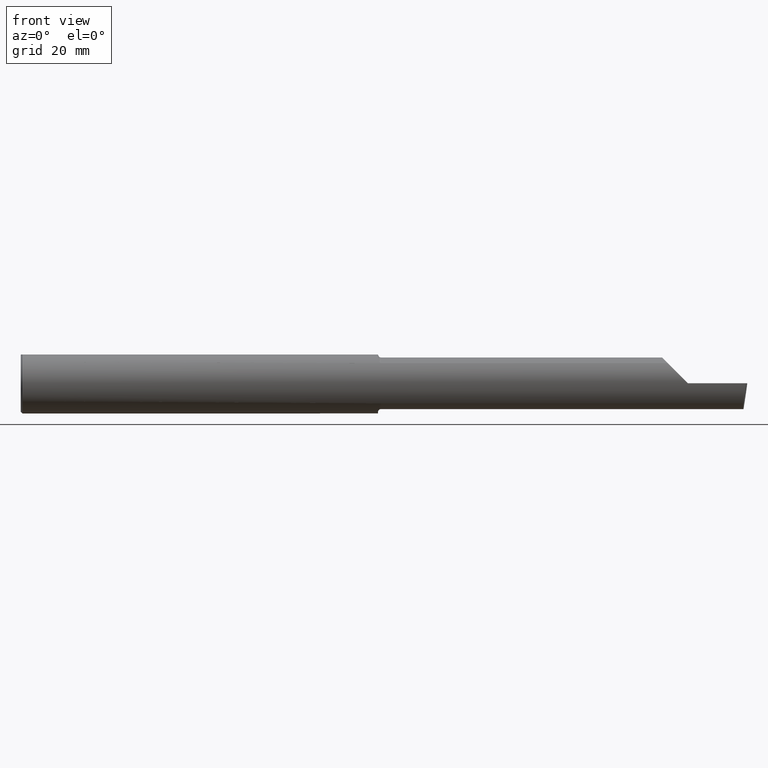
[diagram: clean part render]
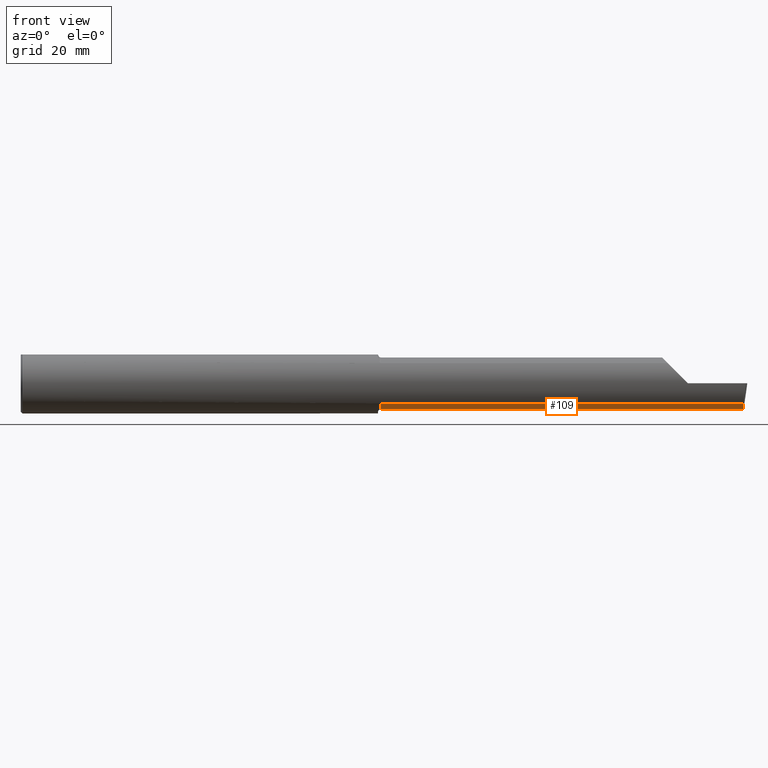
[diagram: same view with one face highlighted and labeled with its STEP entity id]
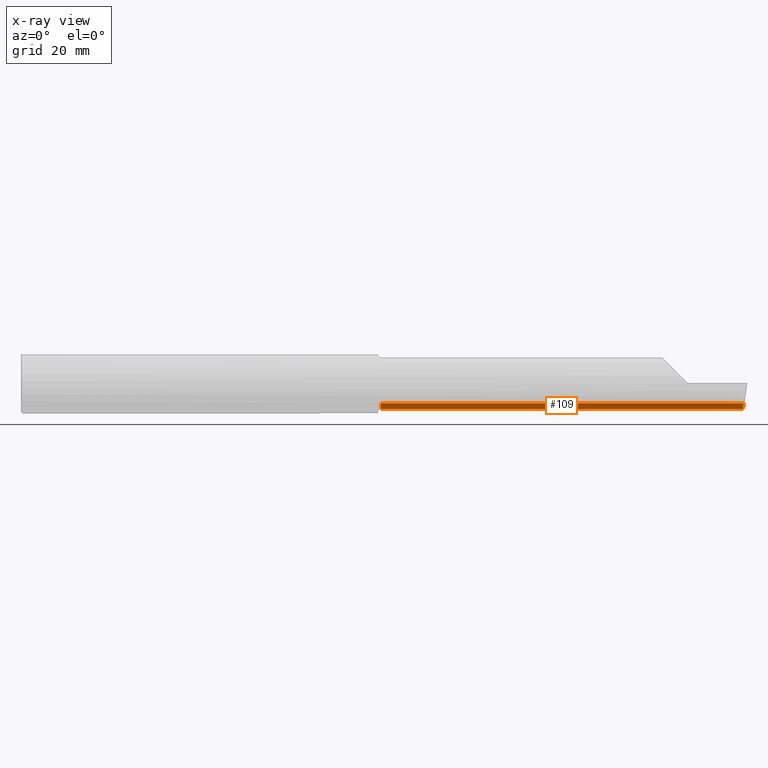
[diagram: x-ray of the same camera — body ghosted, the highlighted face saturated]
A machine part, front view. The second image highlights one B-rep face of the part: STEP entity #109.
The next image is the same camera in x-ray: the body ghosted, the highlighted face saturated — about 0% of this face is hidden behind the body in this view.
In plain terms, the highlighted cylindrical surface (edge-blend (fillet) strip) has radius 5.414 mm, axis along (-1, -0, -0).
Its self-contained STEP definition (entity closure, byte-faithful):
#14 = VERTEX_POINT ( 'NONE', #48 ) ;
#48 = CARTESIAN_POINT ( 'NONE',  ( 2.975000000000000533, -0.1868028301886801024, -0.1659208399614078011 ) ) ;
#57 = CYLINDRICAL_SURFACE ( 'NONE', #367, 0.2131499999999999506 ) ;
#76 = VERTEX_POINT ( 'NONE', #359 ) ;
#96 = CIRCLE ( 'NONE', #292, 0.2131499999999997008 ) ;
#109 = ADVANCED_FACE ( 'NONE', ( #740 ), #57, .T. ) ;
#115 = CARTESIAN_POINT ( 'NONE',  ( 5.968492717492763333, -0.1868028301886794917, -0.1659208399614086338 ) ) ;
#117 = CARTESIAN_POINT ( 'NONE',  ( 6.000000000000000888, -0.05299999999999998462, -0.2131499999999999229 ) ) ;
#152 = EDGE_LOOP ( 'NONE', ( #584, #675, #604, #438, #503 ) ) ;
#158 = CARTESIAN_POINT ( 'NONE',  ( 0.0000000000000000000, -0.05299999999999996381, -0.2131499999999999506 ) ) ;
#187 = CARTESIAN_POINT ( 'NONE',  ( 0.0000000000000000000, -0.05299999999999998462, 0.0000000000000000000 ) ) ;
#194 = EDGE_CURVE ( 'NONE', #76, #677, #617, .T. ) ;
#263 = DIRECTION ( 'NONE',  ( -1.000000000000000000, -0.0000000000000000000, -0.0000000000000000000 ) ) ;
#269 = VECTOR ( 'NONE', #729, 39.37007874015748143 ) ;
#292 = AXIS2_PLACEMENT_3D ( 'NONE', #348, #764, #408 ) ;
#306 = CARTESIAN_POINT ( 'NONE',  ( 5.966195468375009803, -0.05299999999999998462, -0.2131499999999999229 ) ) ;
#348 = CARTESIAN_POINT ( 'NONE',  ( 2.975000000000000533, -0.05299999999999998462, 0.0000000000000000000 ) ) ;
#359 = CARTESIAN_POINT ( 'NONE',  ( 5.966195468375009803, -0.05299999999999998462, -0.2131499999999999229 ) ) ;
#367 = AXIS2_PLACEMENT_3D ( 'NONE', #187, #487, #533 ) ;
#382 = CARTESIAN_POINT ( 'NONE',  ( 5.544999999999999929, -0.05299999999999998462, -0.2131499999999999229 ) ) ;
#391 = EDGE_CURVE ( 'NONE', #677, #727, #710, .T. ) ;
#408 = DIRECTION ( 'NONE',  ( 0.0000000000000000000, 0.0000000000000000000, 1.000000000000000000 ) ) ;
#421 = EDGE_CURVE ( 'NONE', #727, #14, #96, .T. ) ;
#438 = ORIENTED_EDGE ( 'NONE', *, *, #455, .T. ) ;
#455 = EDGE_CURVE ( 'NONE', #697, #14, #521, .T. ) ;
#459 = DIRECTION ( 'NONE',  ( -1.000000000000000000, 5.691349986800549142E-18, -0.0000000000000000000 ) ) ;
#482 = CARTESIAN_POINT ( 'NONE',  ( 5.968492717492763333, -0.1868028301886794917, -0.1659208399614086338 ) ) ;
#487 = DIRECTION ( 'NONE',  ( -1.000000000000000000, -0.0000000000000000000, -0.0000000000000000000 ) ) ;
#503 = ORIENTED_EDGE ( 'NONE', *, *, #421, .F. ) ;
#521 = LINE ( 'NONE', #548, #540 ) ;
#533 = DIRECTION ( 'NONE',  ( 0.0000000000000000000, 0.0000000000000000000, 1.000000000000000000 ) ) ;
#540 = VECTOR ( 'NONE', #263, 39.37007874015748143 ) ;
#548 = CARTESIAN_POINT ( 'NONE',  ( 4.259999999999999787, -0.1868028301886794917, -0.1659208399614086338 ) ) ;
#584 = ORIENTED_EDGE ( 'NONE', *, *, #391, .F. ) ;
#587 = EDGE_CURVE ( 'NONE', #697, #76, #712, .T. ) ;
#604 = ORIENTED_EDGE ( 'NONE', *, *, #587, .F. ) ;
#617 = LINE ( 'NONE', #117, #748 ) ;
#633 = CARTESIAN_POINT ( 'NONE',  ( 2.975000000000000533, -0.05299999999999996381, -0.2131499999999997008 ) ) ;
#654 = CARTESIAN_POINT ( 'NONE',  ( 5.965703997523711166, -0.1485302233682060657, -0.1967848538638755918 ) ) ;
#675 = ORIENTED_EDGE ( 'NONE', *, *, #194, .F. ) ;
#677 = VERTEX_POINT ( 'NONE', #382 ) ;
#697 = VERTEX_POINT ( 'NONE', #115 ) ;
#710 = LINE ( 'NONE', #158, #269 ) ;
#711 = CARTESIAN_POINT ( 'NONE',  ( 5.964907988924524673, -0.1021668565906570791, -0.2131499999999999506 ) ) ;
#712 =( BOUNDED_CURVE ( )  B_SPLINE_CURVE ( 3, ( #482, #654, #711, #306 ),
 .UNSPECIFIED., .F., .F. ) 
 B_SPLINE_CURVE_WITH_KNOTS ( ( 4, 4 ),
 ( 5.814587959757480995, 6.493234751459720400 ),
 .UNSPECIFIED. ) 
 CURVE ( )  GEOMETRIC_REPRESENTATION_ITEM ( )  RATIONAL_B_SPLINE_CURVE ( ( 1.000000000000000000, 0.9619867256453022986, 0.9619867256453022986, 1.000000000000000000 ) ) 
 REPRESENTATION_ITEM ( '' )  );
#727 = VERTEX_POINT ( 'NONE', #633 ) ;
#729 = DIRECTION ( 'NONE',  ( -1.000000000000000000, -0.0000000000000000000, -0.0000000000000000000 ) ) ;
#740 = FACE_OUTER_BOUND ( 'NONE', #152, .T. ) ;
#748 = VECTOR ( 'NONE', #459, 39.37007874015748143 ) ;
#764 = DIRECTION ( 'NONE',  ( -1.000000000000000000, -0.0000000000000000000, -0.0000000000000000000 ) ) ;